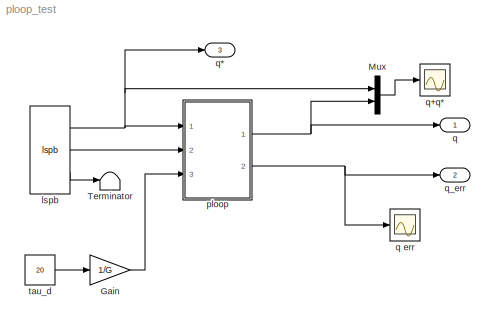
MODEL ploop_test
KIND model
BLOCK [Gain] Gain
  Gain = 1/G
  OutDataTypeStr = Inherit: Inherit via internal rule
  ParamDataTypeStr = Inherit: Inherit via internal rule
  SID = 1
  SaturateOnIntegerOverflow = off
BLOCK [Mux] Mux
  DisplayOption = bar
  Inputs = 2
  Ports = [2, 1]
  SID = 62
BLOCK [Terminator] Terminator
  SID = 38
BLOCK [Reference] lspb  REF=roblocks/Trajectory/lspb  (lib defined in mdl_2a292b13c81b, mdl_69400f8cfe22, +12 more)
  Ports = [0, 3]
  SID = 41
  SourceBlock = roblocks/Trajectory/lspb
  q0 = 0
  qf = 0.5*G
  tmax = 1
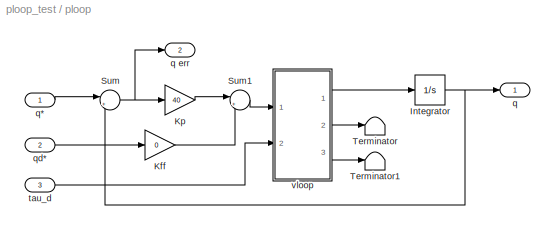
BLOCK [SubSystem] ploop
  Ports = [3, 2]
  RequestExecContextInheritance = off
  SID = 3
BLOCK [Integrator] ploop/Integrator
  Ports = [1, 1]
  SID = 6
BLOCK [Gain] ploop/Kff
  Gain = 0
  OutDataTypeStr = Inherit: Inherit via internal rule
  ParamDataTypeStr = Inherit: Inherit via internal rule
  SID = 39
  SaturateOnIntegerOverflow = off
BLOCK [Gain] ploop/Kp
  Gain = 40
  OutDataTypeStr = Inherit: Inherit via internal rule
  ParamDataTypeStr = Inherit: Inherit via internal rule
  SID = 7
  SaturateOnIntegerOverflow = off
BLOCK [Sum] ploop/Sum
  IconShape = round
  InputSameDT = off
  Inputs = |+-
  OutDataTypeStr = Inherit: Inherit via internal rule
  Ports = [2, 1]
  SID = 8
  SaturateOnIntegerOverflow = off
BLOCK [Sum] ploop/Sum1
  IconShape = round
  InputSameDT = off
  Inputs = |++
  OutDataTypeStr = Inherit: Inherit via internal rule
  Ports = [2, 1]
  SID = 36
  SaturateOnIntegerOverflow = off
BLOCK [Terminator] ploop/Terminator
  SID = 9
BLOCK [Terminator] ploop/Terminator1
  SID = 10
BLOCK [Outport] ploop/q
  IconDisplay = Port number
  SID = 27
BLOCK [Outport] ploop/q err
  IconDisplay = Port number
  Port = 2
  SID = 28
BLOCK [Inport] ploop/q*
  IconDisplay = Port number
  SID = 4
BLOCK [Inport] ploop/qd*
  IconDisplay = Port number
  Port = 2
  SID = 35
BLOCK [Inport] ploop/tau_d
  IconDisplay = Port number
  Port = 3
  SID = 5
BLOCK [ModelReference] ploop/vloop
  CopyOfModelName = vloop
  DefaultDataLogging = off
  ModelNameDialog = vloop
  ModelReferenceVersion = 1.8
  Ports = [2, 3]
  SID = 40
BLOCK [Outport] q
  IconDisplay = Port number
  SID = 32
BLOCK [Scope] q err
  DataFormat = StructureWithTime
  Floating = off
  NumInputPorts = 1
  Ports = [1]
  SID = 30
  SampleTime = 0
  ShowLegends = off
  TimeRange = 1
  YMax = 8
  YMin = -0.5
BLOCK [Outport] q*
  IconDisplay = Port number
  Port = 3
  SID = 37
BLOCK [Scope] q+q* 
  DataFormat = StructureWithTime
  Floating = off
  NumInputPorts = 1
  Ports = [1]
  SID = 2
  SampleTime = 0
  SaveName = ScopeData1
  ShowLegends = off
  YMax = 55
  YMin = 0
BLOCK [Outport] q_err
  IconDisplay = Port number
  Port = 2
  SID = 33
BLOCK [Constant] tau_d
  SID = 31
  Value = 20
LINE Gain:1 -> ploop:3
LINE Mux:1 -> q+q* :1
NET lspb:1 -> Mux:1, ploop:1, q*:1
LINE lspb:2 -> ploop:2
LINE lspb:3 -> Terminator:1
NET ploop/Integrator:1 -> ploop/Sum:2, ploop/q:1
LINE ploop/Kff:1 -> ploop/Sum1:2
LINE ploop/Kp:1 -> ploop/Sum1:1
LINE ploop/Sum1:1 -> ploop/vloop:1
NET ploop/Sum:1 -> ploop/Kp:1, ploop/q err:1
LINE ploop/q*:1 -> ploop/Sum:1
LINE ploop/qd*:1 -> ploop/Kff:1
LINE ploop/tau_d:1 -> ploop/vloop:2
LINE ploop/vloop:1 -> ploop/Integrator:1
LINE ploop/vloop:2 -> ploop/Terminator:1
LINE ploop/vloop:3 -> ploop/Terminator1:1
NET ploop:1 -> Mux:2, q:1
NET ploop:2 -> q err:1, q_err:1
LINE tau_d:1 -> Gain:1
note: NET lines group one-source signal fan-out (src -> all destinations, sorted); 1:1 wires keep LINE
